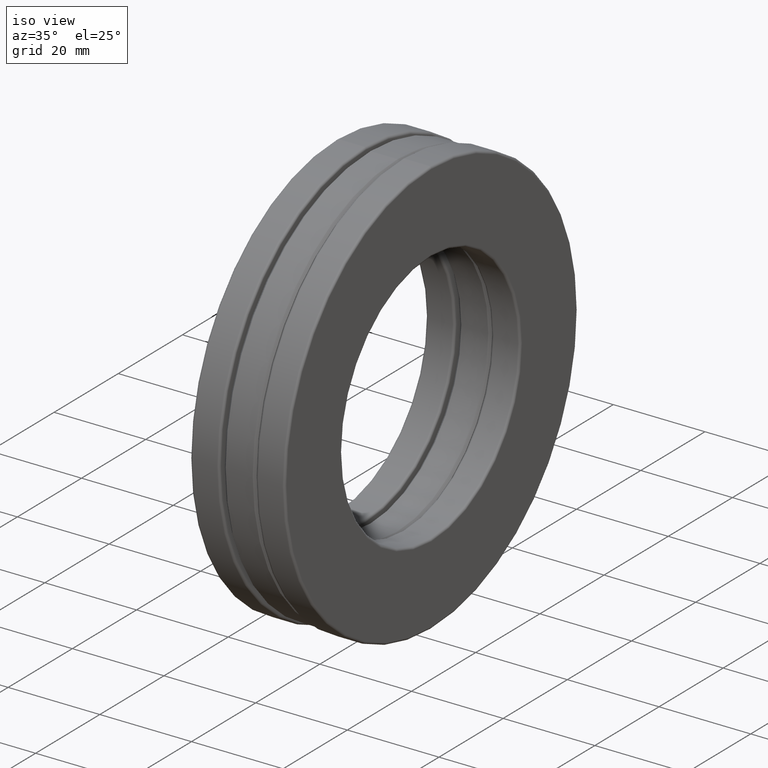
[diagram: clean part render]
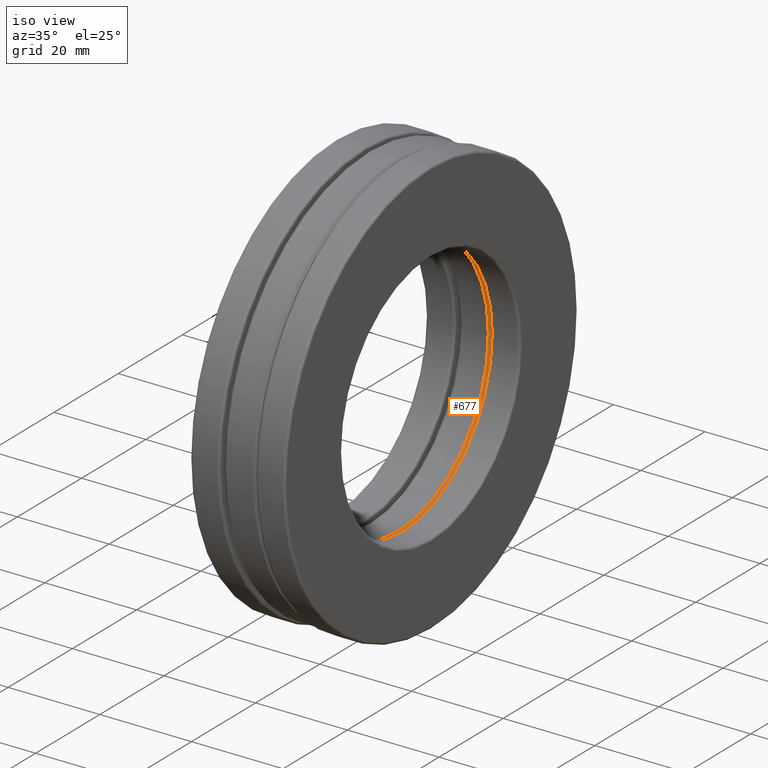
[diagram: same view with one face highlighted and labeled with its STEP entity id]
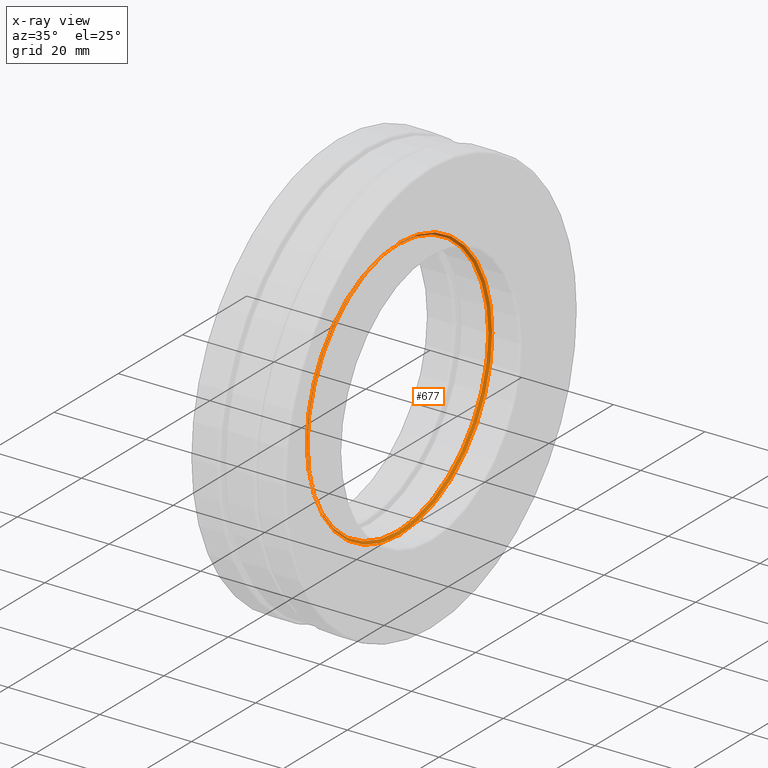
[diagram: x-ray of the same camera — body ghosted, the highlighted face saturated]
A machine part, iso view. The second image highlights one B-rep face of the part: STEP entity #677.
The next image is the same camera in x-ray: the body ghosted, the highlighted face saturated — about 1% of this face is hidden behind the body in this view.
In plain terms, the highlighted conical surface has half-angle 45 deg.
Its self-contained STEP definition (entity closure, byte-faithful):
#1 = CARTESIAN_POINT ( 'NONE',  ( 0.1360000000000000900, 0.0000000000000000000, 0.0000000000000000000 ) ) ;
#75 = EDGE_LOOP ( 'NONE', ( #475 ) ) ;
#157 = EDGE_CURVE ( 'NONE', #607, #607, #583, .T. ) ;
#200 = CONICAL_SURFACE ( 'NONE', #1032, 1.133750000000000300, 0.7853981633974491700 ) ;
#342 = DIRECTION ( 'NONE',  ( 1.000000000000000000, 0.0000000000000000000, 0.0000000000000000000 ) ) ;
#436 = CARTESIAN_POINT ( 'NONE',  ( 0.1160000000000000800, 0.0000000000000000000, 1.113750000000000000 ) ) ;
#475 = ORIENTED_EDGE ( 'NONE', *, *, #157, .T. ) ;
#480 = FACE_OUTER_BOUND ( 'NONE', #1021, .T. ) ;
#532 = CARTESIAN_POINT ( 'NONE',  ( 0.1160000000000000800, 0.0000000000000000000, 0.0000000000000000000 ) ) ;
#561 = CARTESIAN_POINT ( 'NONE',  ( 0.1360000000000000900, 0.0000000000000000000, 1.133750000000000300 ) ) ;
#583 = CIRCLE ( 'NONE', #731, 1.113750000000000000 ) ;
#607 = VERTEX_POINT ( 'NONE', #436 ) ;
#660 = EDGE_CURVE ( 'NONE', #1153, #1153, #771, .T. ) ;
#677 = ADVANCED_FACE ( 'NONE', ( #1251, #480 ), #200, .F. ) ;
#727 = AXIS2_PLACEMENT_3D ( 'NONE', #1, #1244, #1383 ) ;
#731 = AXIS2_PLACEMENT_3D ( 'NONE', #532, #1427, #1306 ) ;
#771 = CIRCLE ( 'NONE', #727, 1.133750000000000300 ) ;
#933 = DIRECTION ( 'NONE',  ( 0.0000000000000000000, 0.0000000000000000000, -1.000000000000000000 ) ) ;
#983 = ORIENTED_EDGE ( 'NONE', *, *, #660, .F. ) ;
#1021 = EDGE_LOOP ( 'NONE', ( #983 ) ) ;
#1032 = AXIS2_PLACEMENT_3D ( 'NONE', #1155, #342, #933 ) ;
#1153 = VERTEX_POINT ( 'NONE', #561 ) ;
#1155 = CARTESIAN_POINT ( 'NONE',  ( 0.1360000000000000900, 0.0000000000000000000, 0.0000000000000000000 ) ) ;
#1244 = DIRECTION ( 'NONE',  ( -1.000000000000000000, -0.0000000000000000000, -0.0000000000000000000 ) ) ;
#1251 = FACE_BOUND ( 'NONE', #75, .T. ) ;
#1306 = DIRECTION ( 'NONE',  ( 0.0000000000000000000, 0.0000000000000000000, 1.000000000000000000 ) ) ;
#1383 = DIRECTION ( 'NONE',  ( 0.0000000000000000000, 0.0000000000000000000, 1.000000000000000000 ) ) ;
#1427 = DIRECTION ( 'NONE',  ( -1.000000000000000000, -0.0000000000000000000, -0.0000000000000000000 ) ) ;